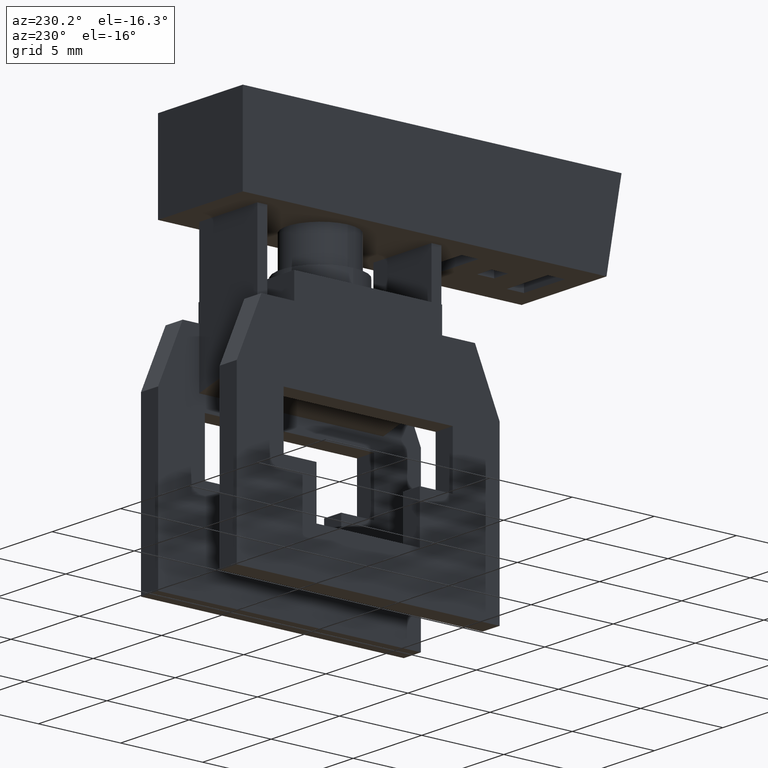
[diagram: clean part render]
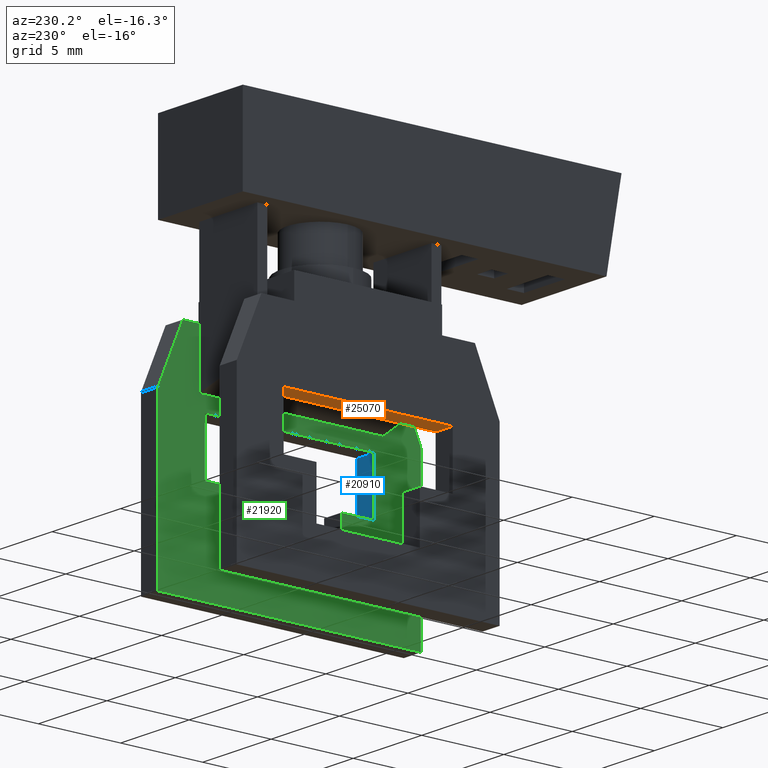
[diagram: same view with three faces highlighted in distinct colors, each labeled with its STEP entity id]
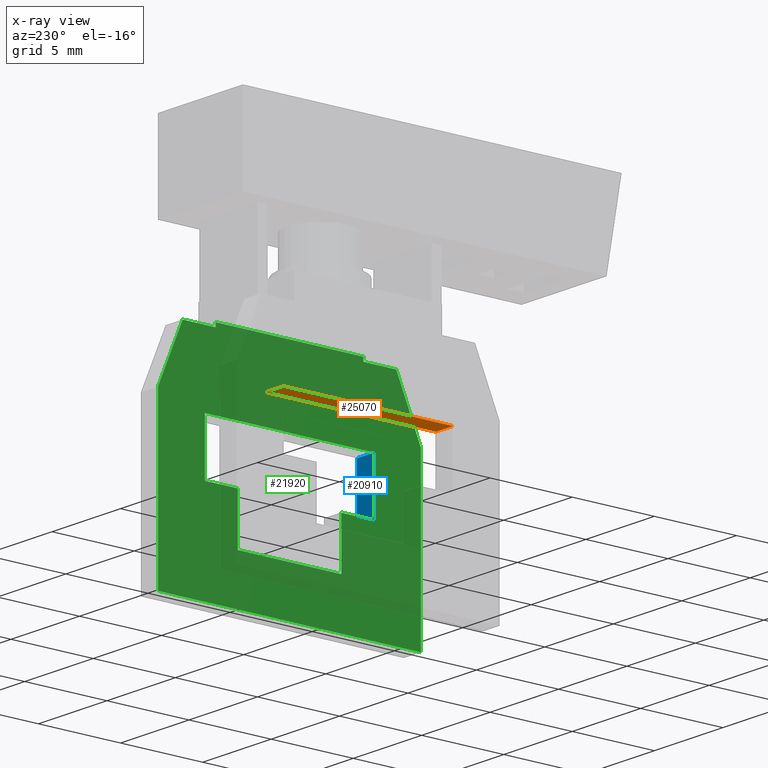
[diagram: x-ray of the same camera — body ghosted, the three highlighted faces saturated]
A machine part, auxiliary view with three faces highlighted in distinct colors.
The next image is the same camera in x-ray (body ghosted, the three faces saturated) — at least one of them is partly hidden behind the body in this view.
Their STEP definitions:

[orange] entity #25070 — the highlighted planar face has unit normal (0, 0, 1).
#20370=CARTESIAN_POINT('',(0.7000024,14.7,-1.486996));
#20380=DIRECTION('',(-0.,1.,0.));
#20390=DIRECTION('',(6.12323399573677E-17,0.,1.));
#20400=AXIS2_PLACEMENT_3D('',#20370,#20380,#20390);
#20410=PLANE('',#20400);
#23630=CARTESIAN_POINT('',(-5.75,14.7,2.84999999999999));
#23640=VERTEX_POINT('',#23630);
#23670=CARTESIAN_POINT('',(-5.75,14.7,0.));
#23680=DIRECTION('',(0.,0.,1.));
#23690=VECTOR('',#23680,1.);
#23700=LINE('',#23670,#23690);
#23710=CARTESIAN_POINT('',(-5.75,14.7,13.15));
#23720=VERTEX_POINT('',#23710);
#23730=EDGE_CURVE('',#23640,#23720,#23700,.T.);
#24820=ORIENTED_EDGE('',*,*,#23730,.T.);
#24830=CARTESIAN_POINT('',(0.,14.7,2.84999999999999));
#24840=DIRECTION('',(-1.,0.,0.));
#24850=VECTOR('',#24840,1.);
#24860=LINE('',#24830,#24850);
#24870=CARTESIAN_POINT('',(-7.,14.7,2.84999999999999));
#24880=VERTEX_POINT('',#24870);
#24890=EDGE_CURVE('',#23640,#24880,#24860,.T.);
#24900=ORIENTED_EDGE('',*,*,#24890,.F.);
#24910=CARTESIAN_POINT('',(-7.,14.7,0.));
#24920=DIRECTION('',(0.,0.,-1.));
#24930=VECTOR('',#24920,1.);
#24940=LINE('',#24910,#24930);
#24950=CARTESIAN_POINT('',(-7.,14.7,13.15));
#24960=VERTEX_POINT('',#24950);
#24970=EDGE_CURVE('',#24960,#24880,#24940,.T.);
#24980=ORIENTED_EDGE('',*,*,#24970,.T.);
#24990=CARTESIAN_POINT('',(0.,14.7,13.15));
#25000=DIRECTION('',(1.,0.,0.));
#25010=VECTOR('',#25000,1.);
#25020=LINE('',#24990,#25010);
#25030=EDGE_CURVE('',#24960,#23720,#25020,.T.);
#25040=ORIENTED_EDGE('',*,*,#25030,.F.);
#25050=EDGE_LOOP('',(#25040,#24980,#24900,#24820));
#25060=FACE_OUTER_BOUND('',#25050,.T.);
#25070=ADVANCED_FACE('',(#25060),#20410,.F.);

[blue] entity #20910 — the highlighted planar face has unit normal (-0, -1, 0).
#19020=CARTESIAN_POINT('',(0.,14.7,13.15));
#19030=VERTEX_POINT('',#19020);
#19060=CARTESIAN_POINT('',(0.,5.5,13.15));
#19070=DIRECTION('',(0.,-1.,1.83697019872103E-16));
#19080=VECTOR('',#19070,1.);
#19090=LINE('',#19060,#19080);
#19100=CARTESIAN_POINT('',(0.,11.4,13.15));
#19110=VERTEX_POINT('',#19100);
#19120=EDGE_CURVE('',#19030,#19110,#19090,.T.);
#20130=CARTESIAN_POINT('',(-7.7000024,11.4,13.15));
#20140=DIRECTION('',(1.,0.,0.));
#20150=VECTOR('',#20140,1.);
#20160=LINE('',#20130,#20150);
#20170=CARTESIAN_POINT('',(-1.25,11.4,13.15));
#20180=VERTEX_POINT('',#20170);
#20190=EDGE_CURVE('',#20180,#19110,#20160,.T.);
#20550=CARTESIAN_POINT('',(-1.25,14.7,13.15));
#20560=VERTEX_POINT('',#20550);
#20590=CARTESIAN_POINT('',(0.,14.7,13.15));
#20600=DIRECTION('',(1.,0.,0.));
#20610=VECTOR('',#20600,1.);
#20620=LINE('',#20590,#20610);
#20630=EDGE_CURVE('',#20560,#19030,#20620,.T.);
#20750=CARTESIAN_POINT('',(-7.7000024,11.4,13.15));
#20760=DIRECTION('',(0.,1.83697019872103E-16,1.));
#20770=DIRECTION('',(0.,1.,-1.83697019872103E-16));
#20780=AXIS2_PLACEMENT_3D('',#20750,#20760,#20770);
#20790=PLANE('',#20780);
#20800=ORIENTED_EDGE('',*,*,#20190,.F.);
#20810=ORIENTED_EDGE('',*,*,#19120,.T.);
#20820=ORIENTED_EDGE('',*,*,#20630,.T.);
#20830=CARTESIAN_POINT('',(-1.25,5.5,13.15));
#20840=DIRECTION('',(0.,1.,-1.83697019872103E-16));
#20850=VECTOR('',#20840,1.);
#20860=LINE('',#20830,#20850);
#20870=EDGE_CURVE('',#20180,#20560,#20860,.T.);
#20880=ORIENTED_EDGE('',*,*,#20870,.T.);
#20890=EDGE_LOOP('',(#20880,#20820,#20810,#20800));
#20900=FACE_OUTER_BOUND('',#20890,.T.);
#20910=ADVANCED_FACE('',(#20900),#20790,.F.);

[green] entity #21920 — the highlighted planar face has unit normal (-1, 0, 0).
#16010=CARTESIAN_POINT('',(-1.25,19.25,12.5));
#16020=VERTEX_POINT('',#16010);
#16480=CARTESIAN_POINT('',(-1.25,19.,12.5));
#16490=VERTEX_POINT('',#16480);
#16520=CARTESIAN_POINT('',(-1.25,0.,12.5));
#16530=DIRECTION('',(0.,-1.,1.83697019872103E-16));
#16540=VECTOR('',#16530,1.);
#16550=LINE('',#16520,#16540);
#16560=EDGE_CURVE('',#16020,#16490,#16550,.T.);
#16770=CARTESIAN_POINT('',(-1.25,19.25,3.5));
#16780=VERTEX_POINT('',#16770);
#16900=CARTESIAN_POINT('',(-1.25,19.25,0.));
#16910=DIRECTION('',(0.,0.,-1.));
#16920=VECTOR('',#16910,1.);
#16930=LINE('',#16900,#16920);
#16940=EDGE_CURVE('',#16020,#16780,#16930,.T.);
#17200=CARTESIAN_POINT('',(-1.25,0.,3.50000000000001));
#17210=DIRECTION('',(0.,1.,-1.83697019872103E-16));
#17220=VECTOR('',#17210,1.);
#17230=LINE('',#17200,#17220);
#17240=CARTESIAN_POINT('',(-1.25,19.,3.5));
#17250=VERTEX_POINT('',#17240);
#17260=EDGE_CURVE('',#17250,#16780,#17230,.T.);
#18050=CARTESIAN_POINT('',(-1.25,19.,0.));
#18060=DIRECTION('',(0.,1.83697019872103E-16,1.));
#18070=VECTOR('',#18060,1.);
#18080=LINE('',#18050,#18070);
#18090=CARTESIAN_POINT('',(-1.25,19.,1.5));
#18100=VERTEX_POINT('',#18090);
#18110=EDGE_CURVE('',#18100,#17250,#18080,.T.);
#18460=CARTESIAN_POINT('',(-1.25,15.4662214512644,0.));
#18470=VERTEX_POINT('',#18460);
#18590=CARTESIAN_POINT('',(-1.25,5.5,-4.23041001882971));
#18600=DIRECTION('',(0.,0.920504853452439,0.390731128489277));
#18610=VECTOR('',#18600,1.);
#18620=LINE('',#18590,#18610);
#18630=EDGE_CURVE('',#18470,#18100,#18620,.T.);
#20080=CARTESIAN_POINT('',(-1.25,11.4,11.15));
#20090=VERTEX_POINT('',#20080);
#20170=CARTESIAN_POINT('',(-1.25,11.4,13.15));
#20180=VERTEX_POINT('',#20170);
#20210=CARTESIAN_POINT('',(-1.25,11.4,0.));
#20220=DIRECTION('',(0.,1.83697019872103E-16,1.));
#20230=VECTOR('',#20220,1.);
#20240=LINE('',#20210,#20230);
#20250=EDGE_CURVE('',#20090,#20180,#20240,.T.);
#20470=CARTESIAN_POINT('',(-1.25,14.7,2.84999999999999));
#20480=VERTEX_POINT('',#20470);
#20510=CARTESIAN_POINT('',(-1.25,14.7,0.));
#20520=DIRECTION('',(0.,0.,-1.));
#20530=VECTOR('',#20520,1.);
#20540=LINE('',#20510,#20530);
#20550=CARTESIAN_POINT('',(-1.25,14.7,13.15));
#20560=VERTEX_POINT('',#20550);
#20570=EDGE_CURVE('',#20560,#20480,#20540,.T.);
#20830=CARTESIAN_POINT('',(-1.25,5.5,13.15));
#20840=DIRECTION('',(0.,1.,-1.83697019872103E-16));
#20850=VECTOR('',#20840,1.);
#20860=LINE('',#20830,#20850);
#20870=EDGE_CURVE('',#20180,#20560,#20860,.T.);
#20990=CARTESIAN_POINT('',(-1.25,5.5,0.));
#21000=DIRECTION('',(-1.,0.,0.));
#21010=DIRECTION('',(0.,1.,0.));
#21020=AXIS2_PLACEMENT_3D('',#20990,#21000,#21010);
#21030=PLANE('',#21020);
#21040=CARTESIAN_POINT('',(-1.25,0.,4.85));
#21050=DIRECTION('',(0.,-1.,1.83697019872103E-16));
#21060=VECTOR('',#21050,1.);
#21070=LINE('',#21040,#21060);
#21080=CARTESIAN_POINT('',(-1.25,11.4,4.84999999999999));
#21090=VERTEX_POINT('',#21080);
#21100=CARTESIAN_POINT('',(-1.25,8.40000000000001,4.84999999999999));
#21110=VERTEX_POINT('',#21100);
#21120=EDGE_CURVE('',#21090,#21110,#21070,.T.);
#21130=ORIENTED_EDGE('',*,*,#21120,.F.);
#21140=CARTESIAN_POINT('',(-1.25,8.40000000000001,0.));
#21150=DIRECTION('',(0.,1.83697019872103E-16,1.));
#21160=VECTOR('',#21150,1.);
#21170=LINE('',#21140,#21160);
#21180=CARTESIAN_POINT('',(-1.25,8.40000000000001,11.15));
#21190=VERTEX_POINT('',#21180);
#21200=EDGE_CURVE('',#21110,#21190,#21170,.T.);
#21210=ORIENTED_EDGE('',*,*,#21200,.F.);
#21220=CARTESIAN_POINT('',(-1.25,0.,11.15));
#21230=DIRECTION('',(0.,1.,-1.83697019872103E-16));
#21240=VECTOR('',#21230,1.);
#21250=LINE('',#21220,#21240);
#21260=EDGE_CURVE('',#21190,#20090,#21250,.T.);
#21270=ORIENTED_EDGE('',*,*,#21260,.F.);
#21280=ORIENTED_EDGE('',*,*,#20250,.F.);
#21290=ORIENTED_EDGE('',*,*,#20870,.F.);
#21300=ORIENTED_EDGE('',*,*,#20570,.F.);
#21310=CARTESIAN_POINT('',(-1.25,5.5,2.85));
#21320=DIRECTION('',(0.,-1.,1.83697019872103E-16));
#21330=VECTOR('',#21320,1.);
#21340=LINE('',#21310,#21330);
#21350=CARTESIAN_POINT('',(-1.25,11.4,2.84999999999999));
#21360=VERTEX_POINT('',#21350);
#21370=EDGE_CURVE('',#20480,#21360,#21340,.T.);
#21380=ORIENTED_EDGE('',*,*,#21370,.F.);
#21390=CARTESIAN_POINT('',(-1.25,11.4,0.));
#21400=DIRECTION('',(0.,1.83697019872103E-16,1.));
#21410=VECTOR('',#21400,1.);
#21420=LINE('',#21390,#21410);
#21430=EDGE_CURVE('',#21360,#21090,#21420,.T.);
#21440=ORIENTED_EDGE('',*,*,#21430,.F.);
#21450=EDGE_LOOP('',(#21440,#21380,#21300,#21290,#21280,#21270,#21210,
#21130));
#21460=FACE_BOUND('',#21450,.T.);
#21470=CARTESIAN_POINT('',(-1.25,0.,0.));
#21480=DIRECTION('',(0.,1.,0.));
#21490=VECTOR('',#21480,1.);
#21500=LINE('',#21470,#21490);
#21510=CARTESIAN_POINT('',(-1.25,5.5,0.));
#21520=VERTEX_POINT('',#21510);
#21530=EDGE_CURVE('',#21520,#18470,#21500,.T.);
#21540=ORIENTED_EDGE('',*,*,#21530,.F.);
#21550=ORIENTED_EDGE('',*,*,#18630,.F.);
#21560=ORIENTED_EDGE('',*,*,#18110,.F.);
#21570=ORIENTED_EDGE('',*,*,#17260,.F.);
#21580=ORIENTED_EDGE('',*,*,#16940,.T.);
#21590=ORIENTED_EDGE('',*,*,#16560,.F.);
#21600=CARTESIAN_POINT('',(-1.25,19.,0.));
#21610=DIRECTION('',(0.,1.83697019872103E-16,1.));
#21620=VECTOR('',#21610,1.);
#21630=LINE('',#21600,#21620);
#21640=CARTESIAN_POINT('',(-1.25,19.,14.5));
#21650=VERTEX_POINT('',#21640);
#21660=EDGE_CURVE('',#16490,#21650,#21630,.T.);
#21670=ORIENTED_EDGE('',*,*,#21660,.F.);
#21680=CARTESIAN_POINT('',(-1.25,5.5,20.2304100188297));
#21690=DIRECTION('',(0.,-0.920504853452439,0.390731128489276));
#21700=VECTOR('',#21690,1.);
#21710=LINE('',#21680,#21700);
#21720=CARTESIAN_POINT('',(-1.25,15.4662214512644,16.));
#21730=VERTEX_POINT('',#21720);
#21740=EDGE_CURVE('',#21650,#21730,#21710,.T.);
#21750=ORIENTED_EDGE('',*,*,#21740,.F.);
#21760=CARTESIAN_POINT('',(-1.25,0.,16.));
#21770=DIRECTION('',(0.,-1.,0.));
#21780=VECTOR('',#21770,1.);
#21790=LINE('',#21760,#21780);
#21800=CARTESIAN_POINT('',(-1.25,5.5,16.));
#21810=VERTEX_POINT('',#21800);
#21820=EDGE_CURVE('',#21730,#21810,#21790,.T.);
#21830=ORIENTED_EDGE('',*,*,#21820,.F.);
#21840=CARTESIAN_POINT('',(-1.25,5.5,0.));
#21850=DIRECTION('',(0.,0.,1.));
#21860=VECTOR('',#21850,1.);
#21870=LINE('',#21840,#21860);
#21880=EDGE_CURVE('',#21520,#21810,#21870,.T.);
#21890=ORIENTED_EDGE('',*,*,#21880,.T.);
#21900=EDGE_LOOP('',(#21890,#21830,#21750,#21670,#21590,#21580,#21570,
#21560,#21550,#21540));
#21910=FACE_OUTER_BOUND('',#21900,.T.);
#21920=ADVANCED_FACE('',(#21460,#21910),#21030,.T.);